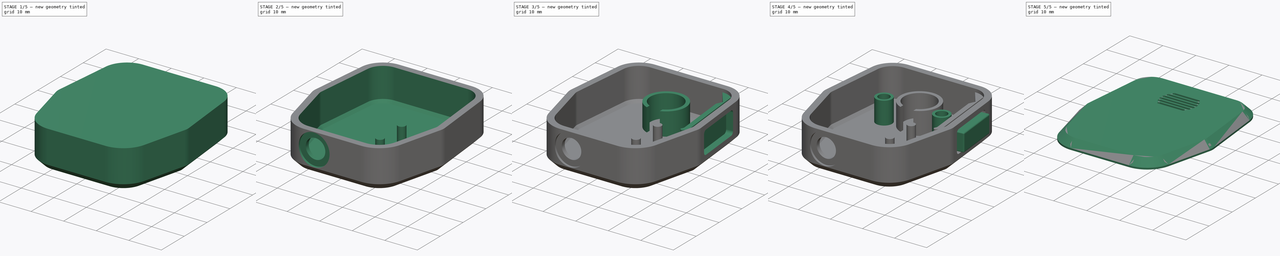
[diagram: build sequence overview — one tinted view per stage of 5, left to right]
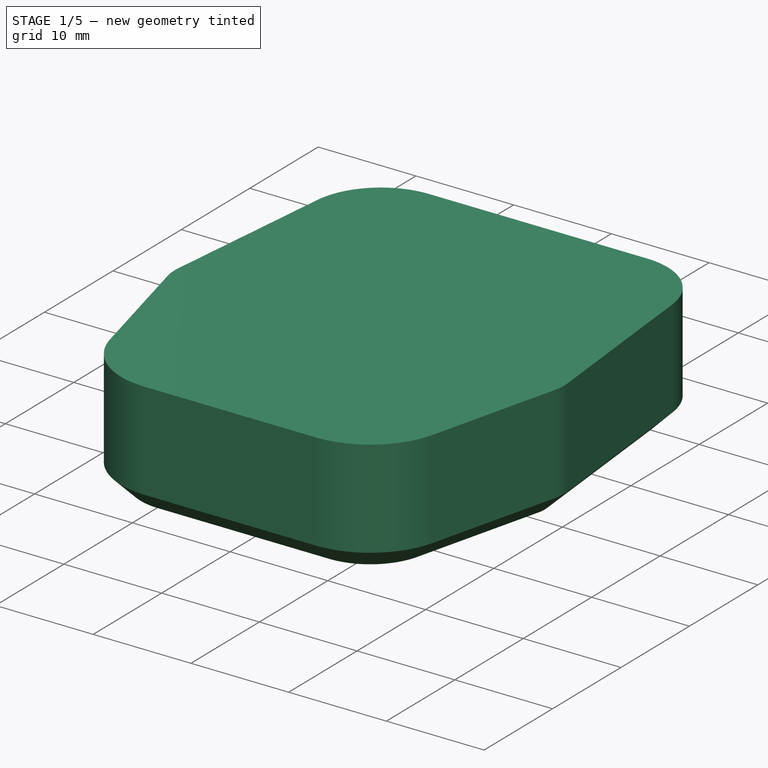
[diagram: stage 1 of 5 — iso view after this stage's code; geometry added in this stage tinted green]
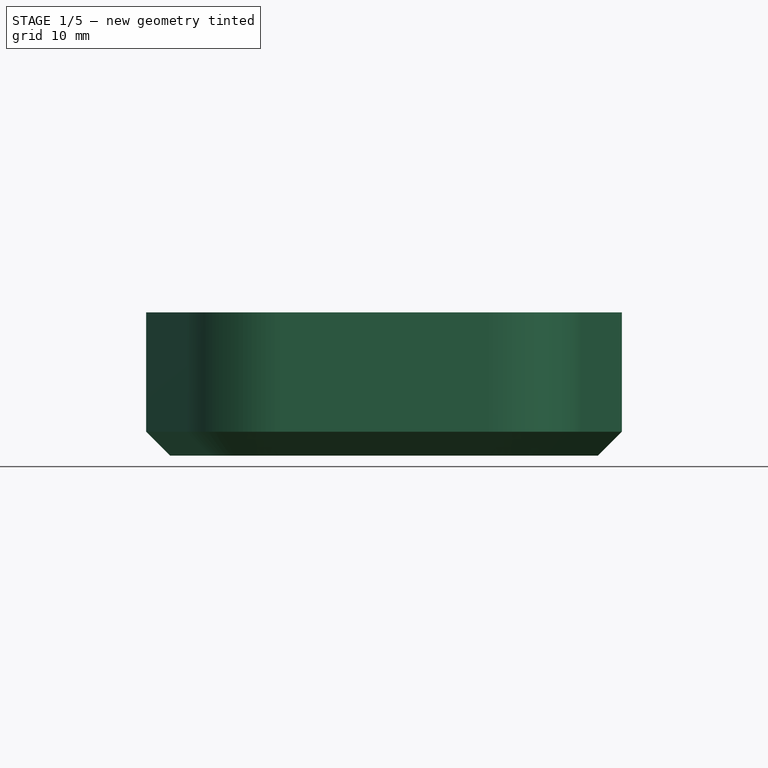
[diagram: stage 1 of 5 — front view after this stage's code; geometry added in this stage tinted green]
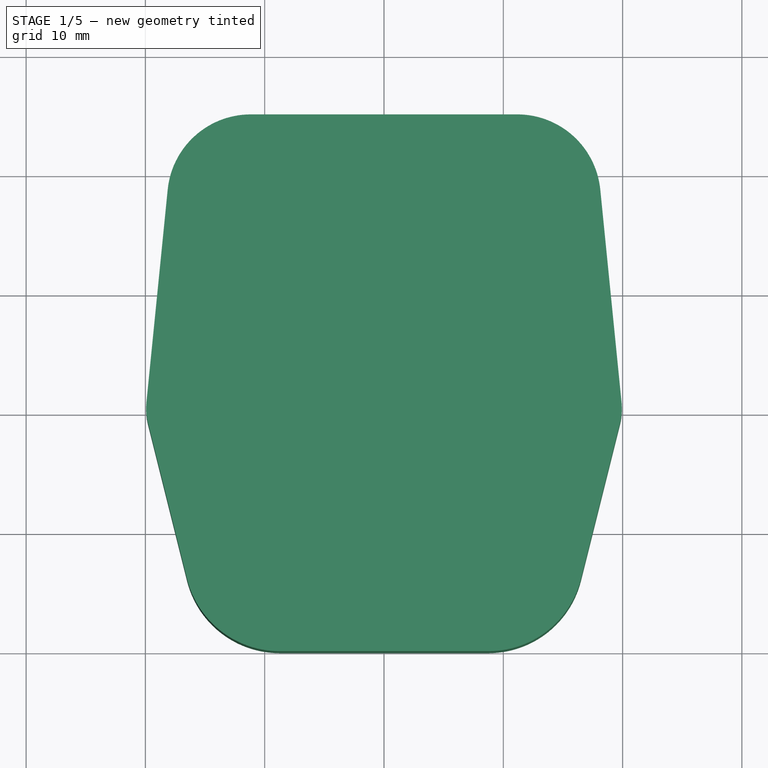
[diagram: stage 1 of 5 — top view after this stage's code; geometry added in this stage tinted green]
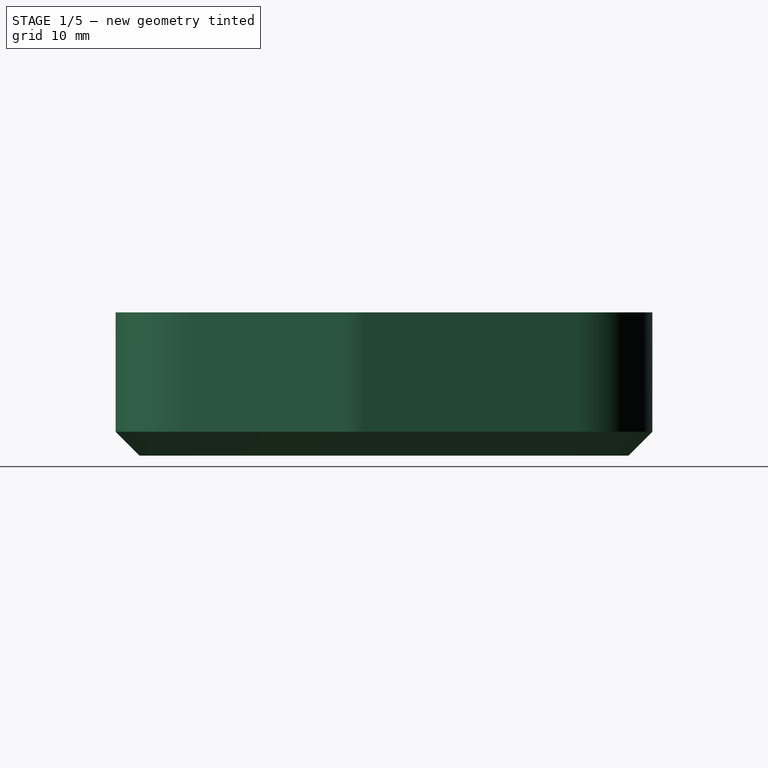
[diagram: stage 1 of 5 — right view after this stage's code; geometry added in this stage tinted green]
FCSTD DOCUMENT  (FreeCAD 1.0R39285 (Git))
Label: QMXMic
License: All rights reserved
objects: Sketcher::SketchObject×17, PartDesign::Pad×9, PartDesign::Pocket×7, PartDesign::Fillet×5, PartDesign::Chamfer×2, PartDesign::Body×2, PartDesign::SubShapeBinder×2, PartDesign::Thickness×1, PartDesign::Hole×1
note: 113 computed .brp shape members not serialized (recipe doc carries the construction recipe); baked Part::Feature solids carry a one-line shape summary decoded from their .brp

FEATURE [Sketcher::SketchObject] Sketch
  ArcFitTolerance = 1e-06
  AttachmentSupport = -> [XY_Plane]
  FullyConstrained = true
  MakeInternals = false
  MapMode = 5
  sketch-geometry (6):
    g0: LineSegment StartX=-20 StartY=0 StartZ=0 EndX=-15 EndY=-20 EndZ=0
    g1: LineSegment StartX=-15 StartY=-20 StartZ=0 EndX=15 EndY=-20 EndZ=0
    g2: LineSegment StartX=15 StartY=-20 StartZ=0 EndX=20 EndY=0 EndZ=0
    g3: LineSegment StartX=-20 StartY=0 StartZ=0 EndX=-17.5 EndY=25 EndZ=0
    g4: LineSegment StartX=-17.5 StartY=25 StartZ=0 EndX=17.5 EndY=25 EndZ=0
    g5: LineSegment StartX=17.5 StartY=25 StartZ=0 EndX=20 EndY=0 EndZ=0
  constraints (15):
    c: Coincident(g1,g0)
    c: Coincident(g2,g1)
    c: Coincident(g3,g0)
    c: Coincident(g4,g3)
    c: Coincident(g5,g4)
    c: Coincident(g5,g2)
    c: Symmetric(g3,g4,g-2)
    c: Symmetric(g0,g1,g-2)
    c: Symmetric(g0,g2,g-2)
    c: DistanceX(g4,g4) = 35
    c: DistanceX(g0,g2) = 40
    c: Distance(g1,g4) = 45
    c: Distance(g0,g4) = 25
    c: PointOnObject(g0,g-1)
    c: DistanceX(g1,g1) = 30
FEATURE [PartDesign::Pad] Pad  label="body"
  Direction = (0,0,1)
  Length = 12
  Length2 = 10
  Profile = -> Sketch
  ReferenceAxis = -> Sketch [N_Axis]
  Refine = true
  Suppressed = false
  Type = 0
FEATURE [PartDesign::Fillet] Fillet  label="upperFillet"
  Base = -> Pad [Edge11,Edge14]
  BaseFeature = -> Pad
  Radius = 7
  Refine = true
  SupportTransform = false
  Suppressed = false
  UseAllEdges = false
FEATURE [PartDesign::Fillet] Fillet001  label="midFillet"
  Base = -> Fillet [Edge3,Edge24]
  BaseFeature = -> Fillet
  Radius = 5
  Refine = true
  SupportTransform = false
  Suppressed = false
  UseAllEdges = false
FEATURE [PartDesign::Fillet] Fillet002  label="lowerFillet"
  Base = -> Fillet001 [Edge27,Edge25]
  BaseFeature = -> Fillet001
  Radius = 8
  Refine = true
  SupportTransform = false
  Suppressed = false
  UseAllEdges = false
FEATURE [PartDesign::Chamfer] Chamfer  label="bottomChamfer"
  Angle = 45
  Base = -> Fillet002 [Face1]
  BaseFeature = -> Fillet002
  ChamferType = 0
  FlipDirection = false
  Refine = true
  Size = 2
  Size2 = 1
  SupportTransform = false
  Suppressed = false
  UseAllEdges = false
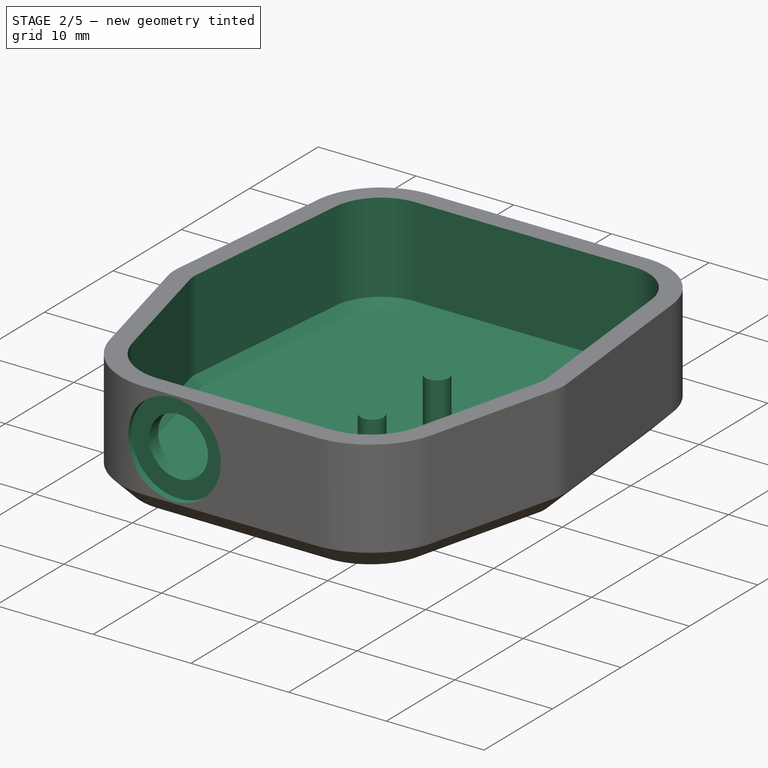
[diagram: stage 2 of 5 — iso view after this stage's code; geometry added in this stage tinted green]
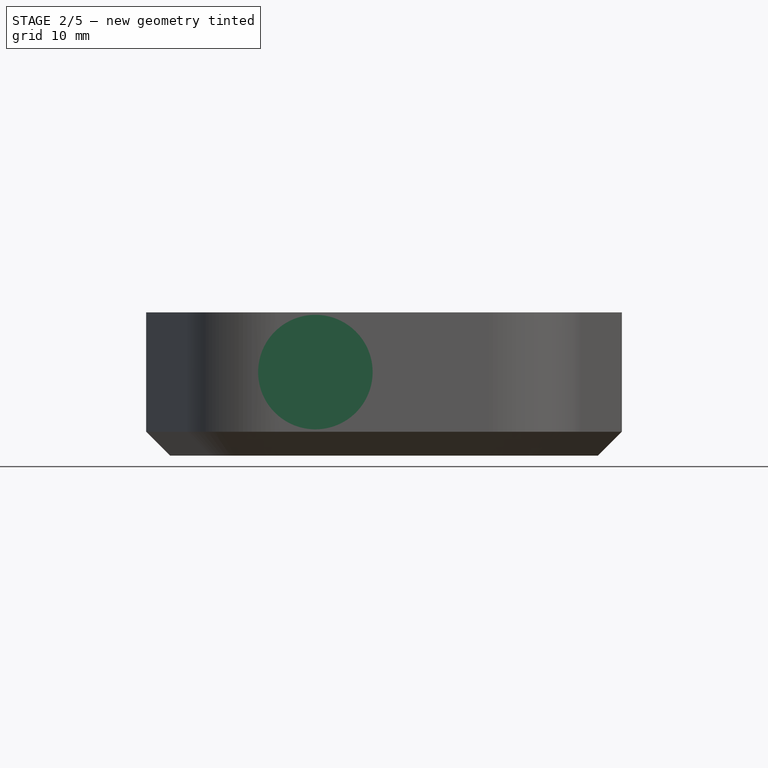
[diagram: stage 2 of 5 — front view after this stage's code; geometry added in this stage tinted green]
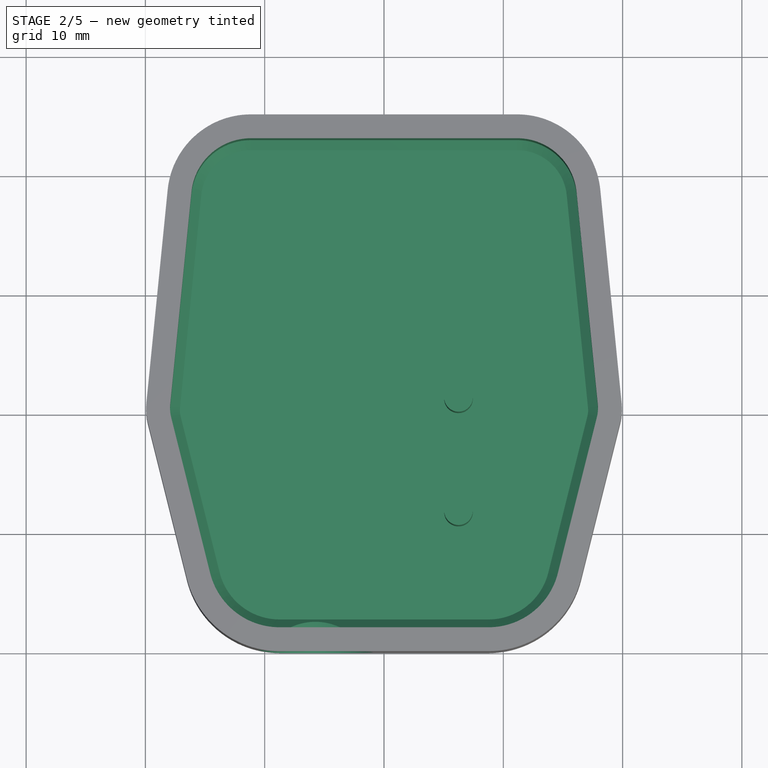
[diagram: stage 2 of 5 — top view after this stage's code; geometry added in this stage tinted green]
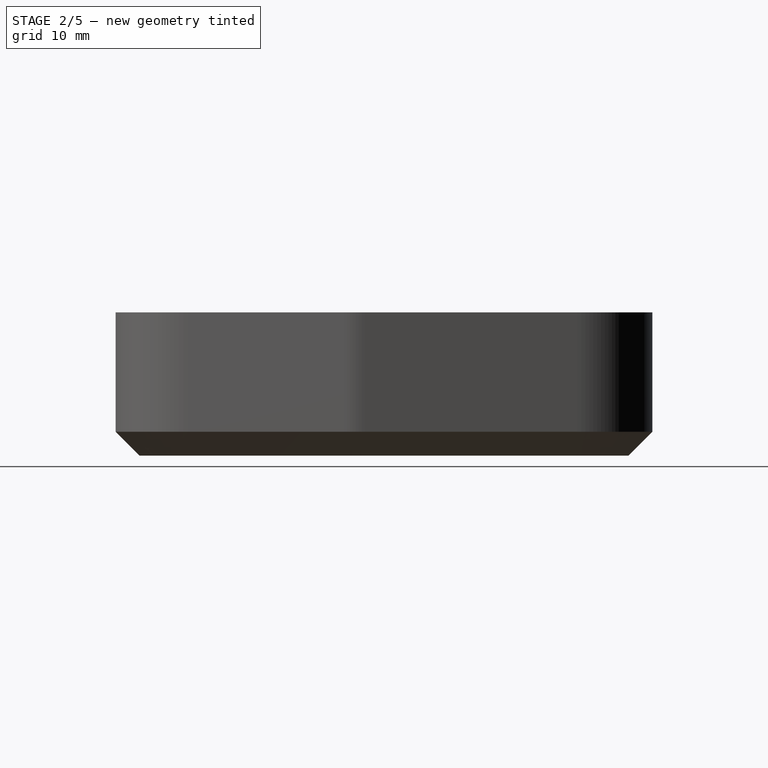
[diagram: stage 2 of 5 — right view after this stage's code; geometry added in this stage tinted green]
FEATURE [PartDesign::Thickness] Thickness  label="shell"
  Base = -> Chamfer [Face26]
  BaseFeature = -> Chamfer
  Intersection = false
  Join = 0
  Mode = 0
  Refine = true
  Reversed = true
  SupportTransform = false
  Suppressed = false
  Value = 2
FEATURE [Sketcher::SketchObject] Sketch001
  ArcFitTolerance = 1e-06
  AttachmentSupport = -> [Thickness]
  ExternalGeometry = -> [Thickness]
  FullyConstrained = true
  MakeInternals = false
  MapMode = 5
  Placement = pos=(0,-20,0) rot=(1,0,0;1.5708rad)
  sketch-geometry (3):
    g0: Circle CenterX=-5.75379 CenterY=7 CenterZ=0 NormalX=0 NormalY=0 NormalZ=1 AngleXU=0 Radius=3
    g1: LineSegment [constr] StartX=-5.75379 StartY=7 StartZ=0 EndX=-5.75379 EndY=12 EndZ=0
    g2: LineSegment [constr] StartX=-5.75379 StartY=7 StartZ=0 EndX=-5.75379 EndY=2 EndZ=0
  constraints (9):
    c: Tangent(g0,g-5)
    c: Diameter(g0) = 6
    c: Coincident(g1,g0)
    c: PointOnObject(g1,g-3)
    c: Vertical(g1)
    c: Coincident(g2,g0)
    c: PointOnObject(g2,g-4)
    c: Vertical(g2)
    c: Equal(g1,g2)
FEATURE [PartDesign::Pocket] Pocket  label="micJackHole"
  BaseFeature = -> Thickness
  Direction = (0,1,-2e-16)
  Length = 5
  Length2 = 5
  Profile = -> Sketch001
  ReferenceAxis = -> Sketch001 [N_Axis]
  Refine = true
  Suppressed = false
  Type = 2
FEATURE [Sketcher::SketchObject] Sketch002
  ArcFitTolerance = 1e-06
  AttachmentSupport = -> [Pocket]
  ExternalGeometry = -> [Pocket]
  FullyConstrained = true
  MakeInternals = false
  MapMode = 5
  Placement = pos=(0,-18,0) rot=(0,0.707107,0.707107;3.14159rad)
  sketch-geometry (1):
    g0: Circle CenterX=5.75379 CenterY=7 CenterZ=0 NormalX=0 NormalY=0 NormalZ=1 AngleXU=0 Radius=4.8
  constraints (2):
    c: Coincident(g0,g-4)
    c: Diameter(g0) = 9.6
FEATURE [PartDesign::Pocket] Pocket001  label="micJackClearanceInside"
  BaseFeature = -> Pocket
  Direction = (0,-1,2e-16)
  Length = 5
  Length2 = 5
  Profile = -> Sketch002
  ReferenceAxis = -> Sketch002 [N_Axis]
  Refine = true
  Reversed = true
  Suppressed = false
  Type = 0
FEATURE [Sketcher::SketchObject] Sketch003
  ArcFitTolerance = 1e-06
  AttachmentSupport = -> [Pocket001]
  ExternalGeometry = -> [Pocket001]
  FullyConstrained = true
  MakeInternals = false
  MapMode = 5
  Placement = pos=(0,-20,0) rot=(1,0,0;1.5708rad)
  sketch-geometry (1):
    g0: Circle CenterX=-5.75379 CenterY=7 CenterZ=0 NormalX=0 NormalY=0 NormalZ=1 AngleXU=0 Radius=4.8
  constraints (2):
    c: Coincident(g0,g-4)
    c: Diameter(g0) = 9.6
FEATURE [PartDesign::Pocket] Pocket002  label="micJackClearanceOutside"
  BaseFeature = -> Pocket001
  Direction = (0,1,-2e-16)
  Length = 0.7
  Length2 = 5
  Profile = -> Sketch003
  ReferenceAxis = -> Sketch003 [N_Axis]
  Refine = true
  Suppressed = false
  Type = 0
FEATURE [Sketcher::SketchObject] Sketch004
  ArcFitTolerance = 1e-06
  AttachmentSupport = -> [Pocket002]
  ExternalGeometry = -> [Pocket002]
  FullyConstrained = true
  MakeInternals = false
  MapMode = 5
  Placement = pos=(0,0,2) rot=(0,0,1;0rad)
  sketch-geometry (4):
    g0: Circle CenterX=6.24621 CenterY=1.32843 CenterZ=0 NormalX=0 NormalY=0 NormalZ=1 AngleXU=0 Radius=1.2
    g1: Circle CenterX=6.24621 CenterY=-8.17157 CenterZ=0 NormalX=0 NormalY=0 NormalZ=1 AngleXU=0 Radius=1.2
    g2: LineSegment [constr] StartX=6.24621 StartY=1.32843 StartZ=0 EndX=6.24621 EndY=-8.17157 EndZ=0
    g3: LineSegment [constr] StartX=-5.75379 StartY=-22.1716 StartZ=0 EndX=-5.75379 EndY=0 EndZ=0
  constraints (11):
    c: Coincident(g2,g0)
    c: Coincident(g2,g1)
    c: Vertical(g2)
    c: Equal(g0,g1)
    c: Diameter(g0) = 2.4
    c: DistanceY(g2,g2) = 9.5
    c: Coincident(g3,g-3)
    c: PointOnObject(g3,g-1)
    c: Vertical(g3)
    c: Distance(g2,g3) = 12
    c: Distance(g1,g-4) = 9
FEATURE [PartDesign::Pad] Pad001  label="buttonPosts"
  BaseFeature = -> Pocket002
  Direction = (0,0,1)
  Length = 7
  Length2 = 10
  Profile = -> Sketch004
  ReferenceAxis = -> Sketch004 [N_Axis]
  Refine = true
  Suppressed = false
  Type = 0
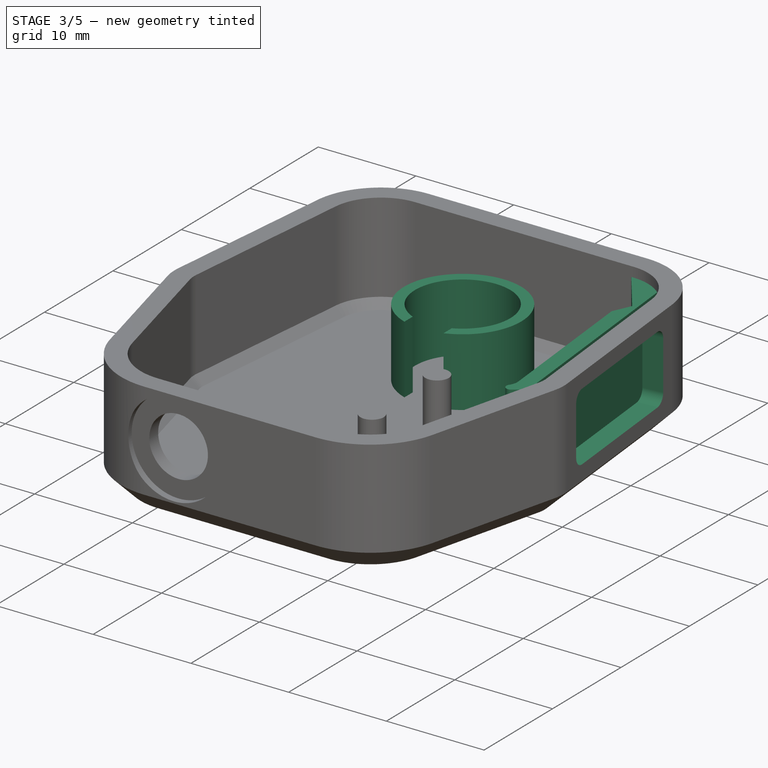
[diagram: stage 3 of 5 — iso view after this stage's code; geometry added in this stage tinted green]
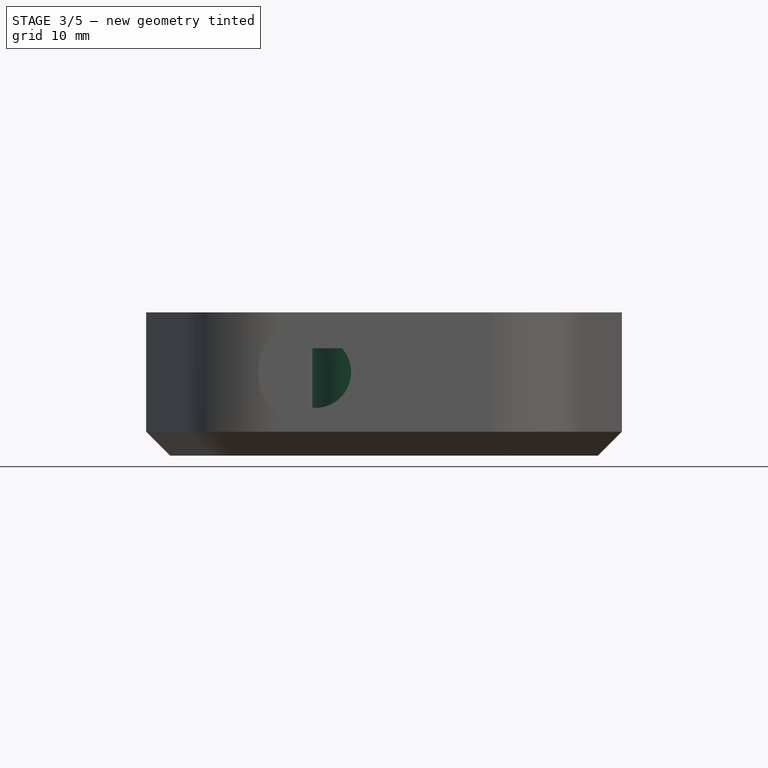
[diagram: stage 3 of 5 — front view after this stage's code; geometry added in this stage tinted green]
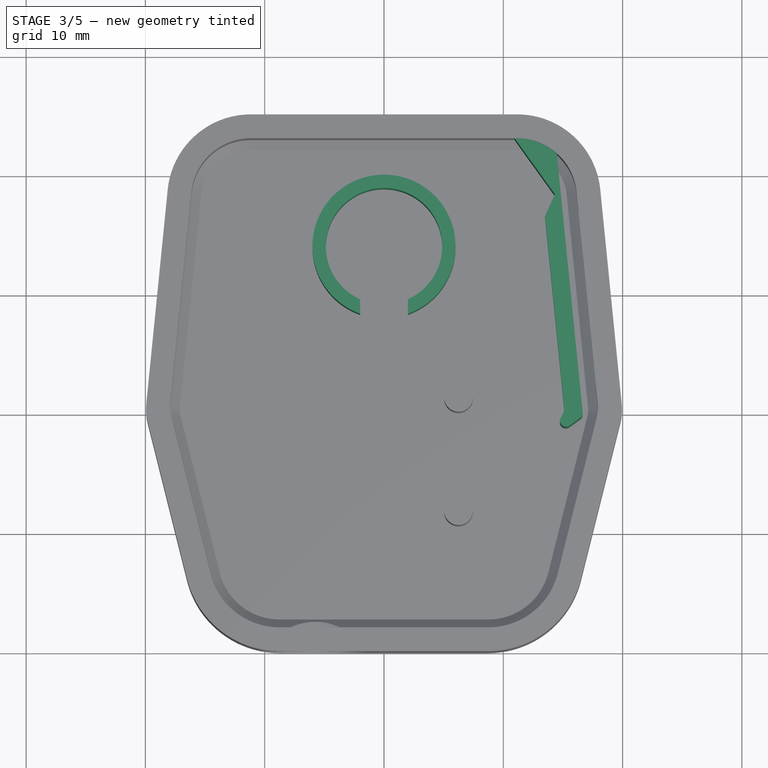
[diagram: stage 3 of 5 — top view after this stage's code; geometry added in this stage tinted green]
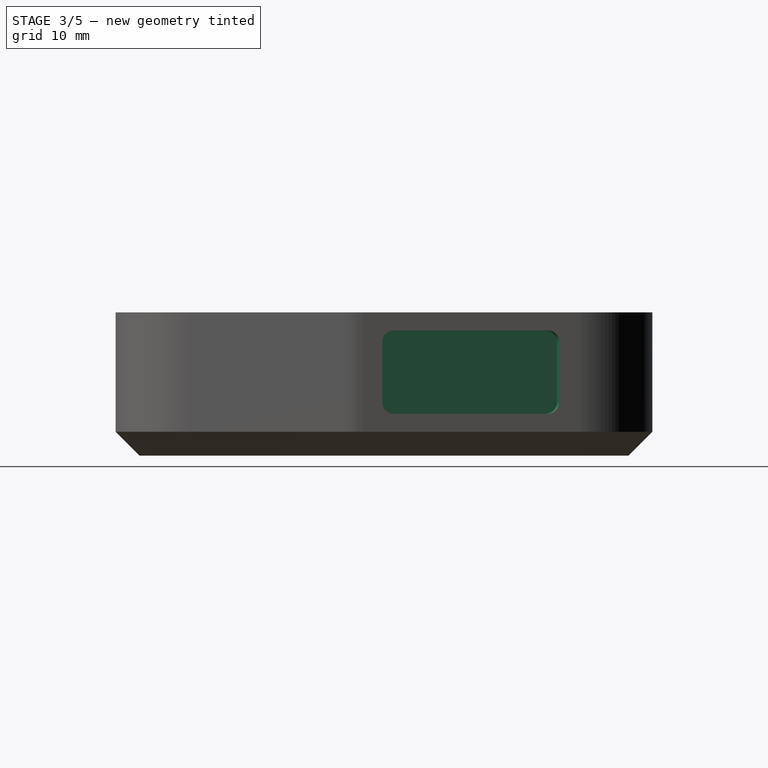
[diagram: stage 3 of 5 — right view after this stage's code; geometry added in this stage tinted green]
FEATURE [Sketcher::SketchObject] Sketch005
  ArcFitTolerance = 1e-06
  AttachmentSupport = -> [Pad001]
  FullyConstrained = true
  MakeInternals = false
  MapMode = 5
  Placement = pos=(0,0,2) rot=(0,0,1;0rad)
  sketch-geometry (1):
    g0: Circle CenterX=0 CenterY=14 CenterZ=0 NormalX=0 NormalY=0 NormalZ=1 AngleXU=0 Radius=6
  constraints (3):
    c: PointOnObject(g0,g-2)
    c: Diameter(g0) = 12
    c: Distance(g0,g-1) = 14
FEATURE [PartDesign::Pad] Pad002  label="micBracket"
  BaseFeature = -> Pad001
  Direction = (0,0,1)
  Length = 7
  Length2 = 10
  Profile = -> Sketch005
  ReferenceAxis = -> Sketch005 [N_Axis]
  Refine = true
  Suppressed = false
  Type = 0
FEATURE [Sketcher::SketchObject] Sketch006
  ArcFitTolerance = 1e-06
  AttachmentSupport = -> [Pad002]
  ExternalGeometry = -> [Pad002]
  FullyConstrained = true
  MakeInternals = false
  MapMode = 5
  Placement = pos=(0,0,9) rot=(0,0,1;0rad)
  sketch-geometry (4):
    g0: ArcOfCircle CenterX=0 CenterY=14 CenterZ=0 NormalX=0 NormalY=0 NormalZ=1 AngleXU=0 Radius=4.875 StartAngle=5.13512 EndAngle=10.5728
    g1: LineSegment StartX=-2 StartY=9.55415 StartZ=0 EndX=-2 EndY=6.55415 EndZ=0
    g2: LineSegment StartX=-2 StartY=6.55415 StartZ=0 EndX=2 EndY=6.55415 EndZ=0
    g3: LineSegment StartX=2 StartY=6.55415 StartZ=0 EndX=2 EndY=9.55415 EndZ=0
  constraints (11):
    c: Coincident(g0,g-3)
    c: Diameter(g0) = 9.75
    c: Vertical(g1)
    c: Coincident(g2,g1)
    c: Coincident(g3,g2)
    c: Symmetric(g3,g1,g-2)
    c: Symmetric(g2,g1,g-2)
    c: Coincident(g0,g1)
    c: DistanceY(g1,g1) = 3
    c: DistanceX(g2,g2) = 4
    c: PointOnObject(g0,g3)
FEATURE [PartDesign::Pocket] Pocket003  label="micBracketInside"
  BaseFeature = -> Pad002
  Direction = (0,0,-1)
  Length = 0
  Length2 = 5
  Profile = -> Sketch006
  ReferenceAxis = -> Sketch006 [N_Axis]
  Refine = true
  Suppressed = false
  Type = 3
  UpToFace = -> Pad002 [Face56]
FEATURE [Sketcher::SketchObject] Sketch007
  ArcFitTolerance = 1e-06
  AttachmentSupport = -> [Pocket003]
  ExternalGeometry = -> [Pocket003]
  FullyConstrained = true
  MakeInternals = false
  MapMode = 5
  Placement = pos=(19.802,1.9802,0) rot=(0.539008,0.595597,0.595597;2.15286rad)
  sketch-geometry (4):
    g0: LineSegment StartX=15.2997 StartY=10.5 StartZ=0 EndX=0.380175 EndY=10.5 EndZ=0
    g1: LineSegment StartX=0.380175 StartY=10.5 StartZ=0 EndX=0.380175 EndY=3.5 EndZ=0
    g2: LineSegment StartX=0.380175 StartY=3.5 StartZ=0 EndX=15.2997 EndY=3.5 EndZ=0
    g3: LineSegment StartX=15.2997 StartY=3.5 StartZ=0 EndX=15.2997 EndY=10.5 EndZ=0
  constraints (12):
    c: Coincident(g0,g1)
    c: Coincident(g1,g2)
    c: Coincident(g2,g3)
    c: Coincident(g3,g0)
    c: Horizontal(g0)
    c: Horizontal(g2)
    c: Vertical(g1)
    c: Vertical(g3)
    c: Distance(g-4,g0) = 1.5
    c: Distance(g-5,g2) = 1.5
    c: Distance(g-3,g1) = 1.5
    c: Distance(g-6,g3) = 1.5
FEATURE [PartDesign::Pocket] Pocket004  label="pttHole"
  BaseFeature = -> Pocket003
  Direction = (-0.995037,-0.0995037,-1e-16)
  Length = 5
  Length2 = 5
  Profile = -> Sketch007
  ReferenceAxis = -> Sketch007 [N_Axis]
  Refine = true
  Suppressed = false
  Type = 2
FEATURE [PartDesign::Fillet] Fillet003  label="pttHoleFillet"
  Base = -> Pocket004 [Edge83,Edge86,Edge85,Edge88]
  BaseFeature = -> Pocket004
  Radius = 1
  Refine = true
  SupportTransform = false
  Suppressed = false
  UseAllEdges = false
FEATURE [Sketcher::SketchObject] Sketch008
  ArcFitTolerance = 1e-06
  AttachmentSupport = -> [Fillet003]
  ExternalGeometry = -> [Fillet003]
  FullyConstrained = true
  MakeInternals = false
  MapMode = 5
  Placement = pos=(0,0,2) rot=(0,0,1;0rad)
  sketch-geometry (13):
    g0: LineSegment StartX=14.4807 StartY=21.7425 StartZ=0 EndX=16.6519 EndY=0.031 EndZ=0
    g1: LineSegment StartX=14.3209 StartY=18.3156 StartZ=0 EndX=13.4982 EndY=16.4926 EndZ=0
    g2: LineSegment StartX=13.4982 StartY=16.4926 StartZ=0 EndX=15.087 EndY=0.605306 EndZ=0
    g3: ArcOfCircle CenterX=15.2462 CenterY=-0.671573 CenterZ=0 NormalX=0 NormalY=0 NormalZ=1 AngleXU=0 Radius=0.5 StartAngle=2.5426 EndAngle=5.33566
    g4: LineSegment [constr] StartX=6.24621 StartY=1.32843 StartZ=0 EndX=6.24621 EndY=-8.17157 EndZ=0
    g5: LineSegment StartX=16.4462 StartY=-0.42474 StartZ=0 EndX=15.5381 EndY=-1.07756 EndZ=0
    g6: ArcOfCircle CenterX=13.5944 CenterY=0.45605 CenterZ=0 NormalX=0 NormalY=0 NormalZ=1 AngleXU=0 Radius=1.5 StartAngle=5.68419 EndAngle=6.38285
    g7: ArcOfCircle CenterX=16.1544 CenterY=-0.0187518 CenterZ=0 NormalX=0 NormalY=0 NormalZ=1 AngleXU=0 Radius=0.5 StartAngle=5.33566 EndAngle=6.38285
    g8: GeomPoint [constr] X=16.6806 Y=-0.256242 Z=0
    g9: ArcOfCircle CenterX=11.1651 CenterY=18 CenterZ=0 NormalX=0 NormalY=0 NormalZ=1 AngleXU=0 Radius=5 StartAngle=0.845809 EndAngle=1.5708
    g10: LineSegment StartX=10.9535 StartY=23 StartZ=0 EndX=14.3209 EndY=18.3156 EndZ=0
    g11: LineSegment [constr] StartX=11.1651 StartY=23 StartZ=0 EndX=0 EndY=23 EndZ=0
    g12: LineSegment StartX=10.9535 StartY=23 StartZ=0 EndX=11.1651 EndY=23 EndZ=0
  constraints (33):
    c: Coincident(g2,g1)
    c: Parallel(g2,g0)
    c: Distance(g0,g2) = 1.5
    c: Distance(g1,g0) = 0.5
    c: Parallel(g0,g-4)
    c: Distance(g0,g-4) = 0.5
    c: Radius(g3) = 0.5
    c: Coincident(g4,g-6)
    c: Coincident(g4,g-7)
    c: Distance(g3,g4) = 9
    c: DistanceY(g3,g4) = 2
    c: Tangent(g5,g3) = 1.5708
    c: Tangent(g6,g2) = 1.5708
    c: Tangent(g6,g3) = 1.5708
    c: PointOnObject(g8,g0)
    c: PointOnObject(g8,g5)
    c: Tangent(g0,g7) = 1.5708
    c: Tangent(g5,g7) = 1.5708
    c: Radius(g7) = 0.5
    c: Radius(g6) = 1.5
    c: Angle(g0,g5) = 2.0944
    c: Coincident(g9,g0)
    c: Coincident(g-8,g9)
    c: Coincident(g10,g1)
    c: Angle(g10,g1) = 2.0944
    c: Angle(g2,g1) = 2.61799
    c: PointOnObject(g1,g-5)
    c: PointOnObject(g11,g-2)
    c: Tangent(g11,g-8) = -1.5708
    c: Coincident(g9,g11)
    c: Coincident(g12,g10)
    c: Coincident(g12,g9)
    c: Horizontal(g12)
FEATURE [PartDesign::Pad] Pad003  label="pttButtonLever"
  BaseFeature = -> Fillet003
  Direction = (0,0,1)
  Length = 10
  Length2 = 10
  Offset = 1
  Profile = -> Sketch008
  ReferenceAxis = -> Sketch008 [N_Axis]
  Refine = true
  Suppressed = false
  Type = 3
  UpToFace = -> Fillet003 [Face12]
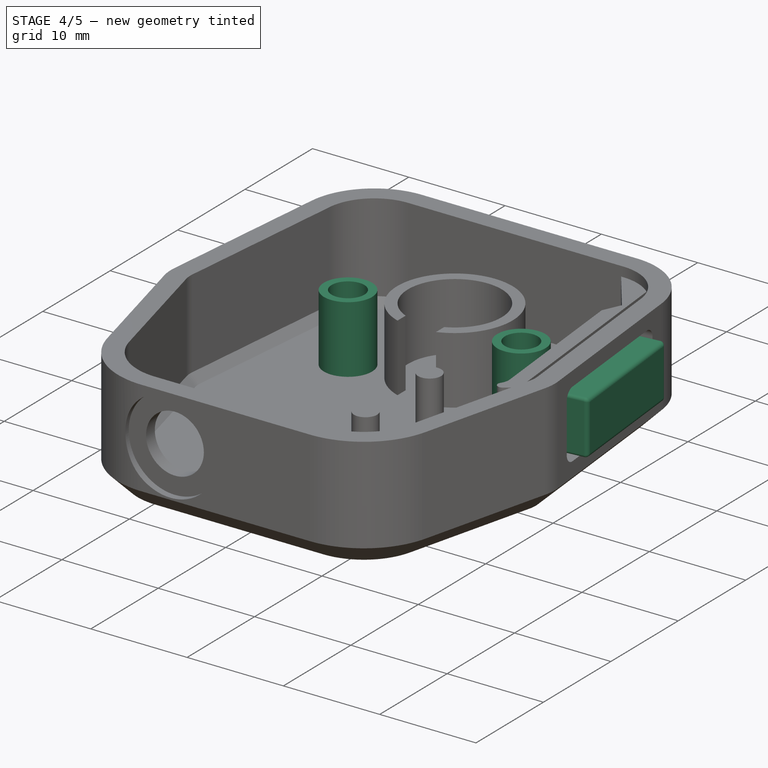
[diagram: stage 4 of 5 — iso view after this stage's code; geometry added in this stage tinted green]
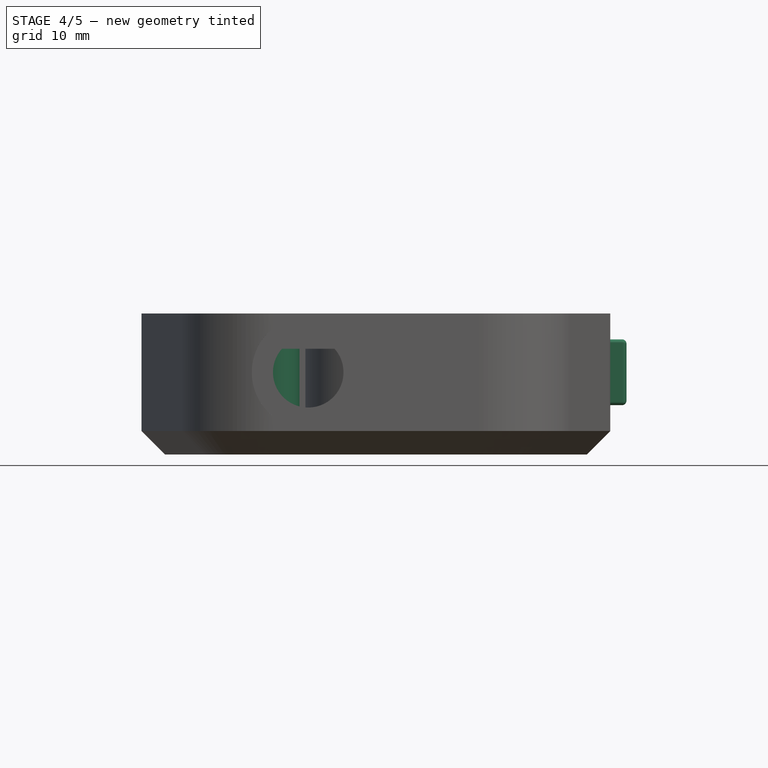
[diagram: stage 4 of 5 — front view after this stage's code; geometry added in this stage tinted green]
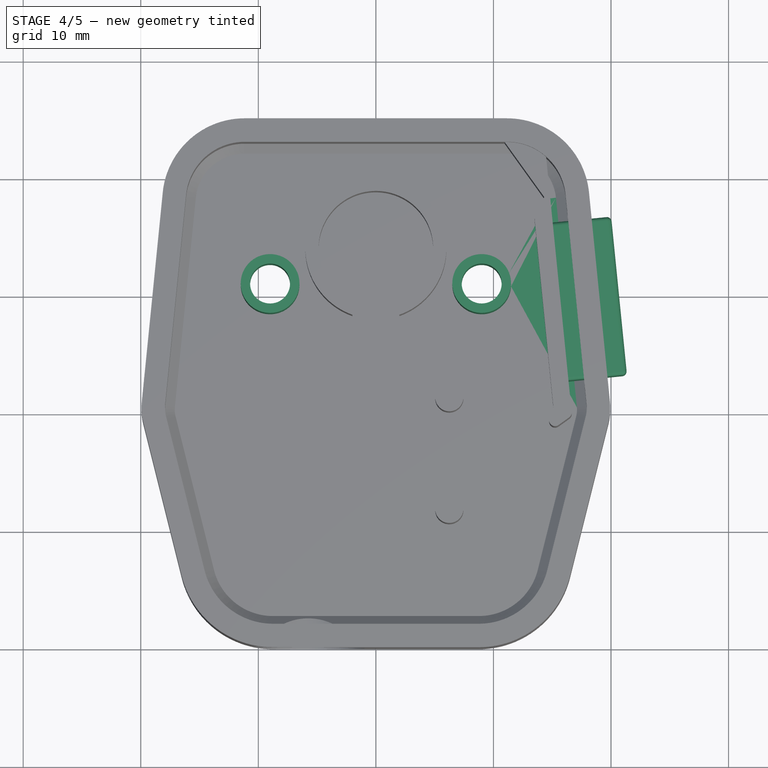
[diagram: stage 4 of 5 — top view after this stage's code; geometry added in this stage tinted green]
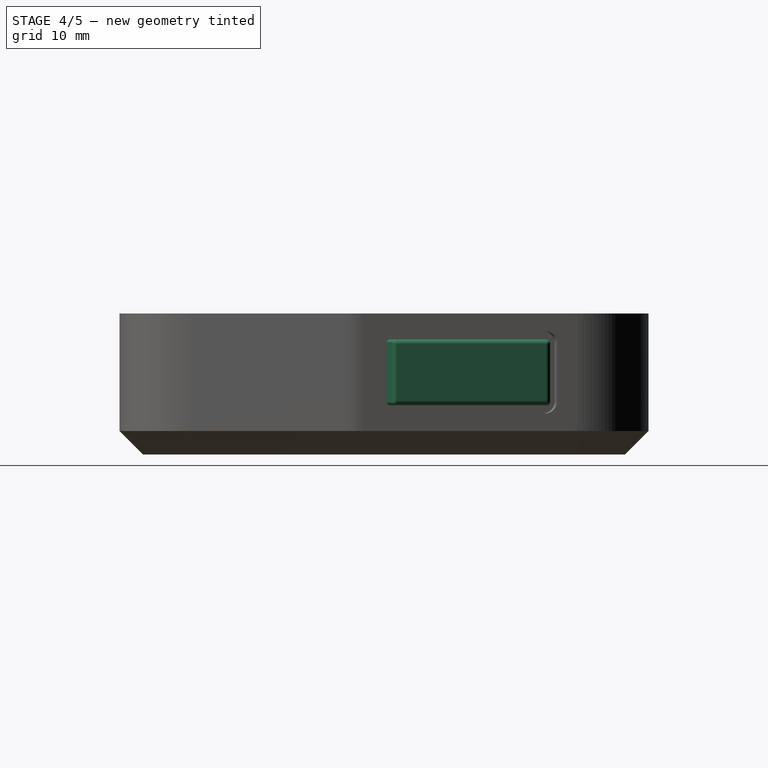
[diagram: stage 4 of 5 — right view after this stage's code; geometry added in this stage tinted green]
FEATURE [Sketcher::SketchObject] Sketch009
  ArcFitTolerance = 1e-06
  AttachmentSupport = -> [Pad003]
  ExternalGeometry = -> [Pad003]
  FullyConstrained = true
  MakeInternals = false
  MapMode = 5
  Placement = pos=(14.9975,1.49975,0) rot=(0.61569,-0.557192,-0.557192;2.03784rad)
  sketch-geometry (4):
    g0: LineSegment StartX=-16.7997 StartY=2 StartZ=0 EndX=2.7003 EndY=2 EndZ=0
    g1: LineSegment StartX=2.7003 StartY=2 StartZ=0 EndX=2.7003 EndY=3 EndZ=0
    g2: LineSegment StartX=2.7003 StartY=3 StartZ=0 EndX=-16.7997 EndY=3 EndZ=0
    g3: LineSegment StartX=-16.7997 StartY=3 StartZ=0 EndX=-16.7997 EndY=2 EndZ=0
  constraints (11):
    c: Coincident(g0,g1)
    c: Coincident(g1,g2)
    c: Coincident(g2,g3)
    c: Coincident(g3,g0)
    c: Horizontal(g0)
    c: Horizontal(g2)
    c: Vertical(g1)
    c: Vertical(g3)
    c: Coincident(g0,g-3)
    c: Distance(g1,g1) = 1
    c: DistanceX(g0,g0) = 19.5
FEATURE [PartDesign::Pocket] Pocket005  label="pttButtonLeverRelief"
  BaseFeature = -> Pad003
  Direction = (0.995037,0.0995037,0)
  Length = 3
  Length2 = 5
  Midplane = true
  Profile = -> Sketch009
  ReferenceAxis = -> Sketch009 [N_Axis]
  Refine = true
  Suppressed = false
  Type = 0
FEATURE [Sketcher::SketchObject] Sketch010
  ArcFitTolerance = 1e-06
  AttachmentSupport = -> [Pocket005]
  ExternalGeometry = -> [Pocket005]
  FullyConstrained = true
  MakeInternals = false
  MapMode = 5
  Placement = pos=(16.4901,1.64901,0) rot=(0.539008,0.595597,0.595597;2.15286rad)
  sketch-geometry (8):
    g0: ArcOfCircle CenterX=1.38018 CenterY=9.5 CenterZ=0 NormalX=0 NormalY=0 NormalZ=1 AngleXU=0 Radius=0.3 StartAngle=1.5708 EndAngle=3.14159
    g1: ArcOfCircle CenterX=1.38018 CenterY=4.5 CenterZ=0 NormalX=0 NormalY=0 NormalZ=1 AngleXU=0 Radius=0.3 StartAngle=3.14159 EndAngle=4.71239
    g2: ArcOfCircle CenterX=14.2997 CenterY=4.5 CenterZ=0 NormalX=0 NormalY=0 NormalZ=1 AngleXU=0 Radius=0.3 StartAngle=4.7124 EndAngle=6.28319
    g3: ArcOfCircle CenterX=14.2997 CenterY=9.5 CenterZ=0 NormalX=0 NormalY=0 NormalZ=1 AngleXU=0 Radius=0.3 StartAngle=0 EndAngle=1.57081
    g4: LineSegment StartX=1.38018 StartY=9.8 StartZ=0 EndX=14.2997 EndY=9.8 EndZ=0
    g5: LineSegment StartX=14.5997 StartY=9.5 StartZ=0 EndX=14.5997 EndY=4.5 EndZ=0
    g6: LineSegment StartX=14.2997 StartY=4.2 StartZ=0 EndX=1.38018 EndY=4.2 EndZ=0
    g7: LineSegment StartX=1.08018 StartY=4.5 StartZ=0 EndX=1.08018 EndY=9.5 EndZ=0
  constraints (20):
    c: Coincident(g0,g-4)
    c: Coincident(g1,g-6)
    c: Coincident(g2,g-8)
    c: Coincident(g3,g-10)
    c: Equal(g0,g3)
    c: Equal(g3,g2)
    c: Equal(g2,g1)
    c: Coincident(g4,g3)
    c: Horizontal(g4)
    c: Coincident(g5,g2)
    c: Vertical(g5)
    c: Coincident(g6,g2)
    c: Horizontal(g6)
    c: Coincident(g7,g0)
    c: Vertical(g7)
    c: Distance(g7,g-5) = 0.7
    c: Tangent(g5,g3) = 1.5708
    c: Tangent(g6,g1) = 1.5708
    c: Tangent(g4,g0) = 1.5708
    c: Tangent(g7,g1) = 1.5708
FEATURE [PartDesign::Pad] Pad004  label="pttButton"
  BaseFeature = -> Pocket005
  Direction = (0.995037,0.0995037,1e-16)
  Length = 5
  Length2 = 10
  Profile = -> Sketch010
  ReferenceAxis = -> Sketch010 [N_Axis]
  Refine = true
  Suppressed = false
  Type = 0
FEATURE [PartDesign::Fillet] Fillet004  label="pttButtonFillet"
  Base = -> Pad004 [Face91]
  BaseFeature = -> Pad004
  Radius = 0.4
  Refine = true
  SupportTransform = false
  Suppressed = false
  UseAllEdges = false
FEATURE [Sketcher::SketchObject] Sketch011
  ArcFitTolerance = 1e-06
  AttachmentSupport = -> [Fillet004]
  FullyConstrained = true
  MakeInternals = false
  MapMode = 5
  Placement = pos=(0,0,2) rot=(0,0,1;0rad)
  sketch-geometry (2):
    g0: Circle CenterX=-9 CenterY=11 CenterZ=0 NormalX=0 NormalY=0 NormalZ=1 AngleXU=0 Radius=2.5
    g1: Circle CenterX=9 CenterY=11 CenterZ=0 NormalX=0 NormalY=0 NormalZ=1 AngleXU=0 Radius=2.5
  constraints (5):
    c: Equal(g1,g0)
    c: Diameter(g0) = 5
    c: Symmetric(g0,g1,g-2)
    c: DistanceX(g0,g1) = 18
    c: Distance(g0,g-1) = 11
FEATURE [PartDesign::Pad] Pad005  label="screwPosts"
  BaseFeature = -> Fillet004
  Direction = (0,0,1)
  Length = 10
  Length2 = 10
  Offset = 3
  Profile = -> Sketch011
  ReferenceAxis = -> Sketch011 [N_Axis]
  Refine = true
  Suppressed = false
  Type = 3
  UpToFace = -> Fillet004 [Face42]
FEATURE [Sketcher::SketchObject] Sketch012
  ArcFitTolerance = 1e-06
  AttachmentSupport = -> [Pad005]
  ExternalGeometry = -> [Pad005]
  FullyConstrained = true
  MakeInternals = false
  MapMode = 5
  Placement = pos=(0,0,0) rot=(1,0,0;3.14159rad)
  sketch-geometry (2):
    g0: Circle CenterX=-9 CenterY=-11 CenterZ=0 NormalX=0 NormalY=0 NormalZ=1 AngleXU=0 Radius=1.6
    g1: Circle CenterX=9 CenterY=-11 CenterZ=0 NormalX=0 NormalY=0 NormalZ=1 AngleXU=0 Radius=1.6
  constraints (4):
    c: Coincident(g0,g-4)
    c: Coincident(g1,g-3)
    c: Equal(g0,g1)
    c: Diameter(g1) = 3.2
FEATURE [PartDesign::Hole] Hole  label="screwHoles"
  BaseFeature = -> Pad005
  CustomThreadClearance = 0
  Depth = 25
  DepthType = 0
  Diameter = 3.4
  DrillForDepth = false
  DrillPoint = 1
  DrillPointAngle = 118
  HoleCutCountersinkAngle = 90
  HoleCutCustomValues = false
  HoleCutDepth = 0
  HoleCutDiameter = 6.1
  HoleCutType = 2
  ModelThread = false
  Profile = -> Sketch012
  Refine = true
  Suppressed = false
  Tapered = false
  TaperedAngle = 90
  ThreadClass = 0
  ThreadDepth = 25
  ThreadDepthType = 0
  ThreadDirection = 0
  ThreadFit = 0
  ThreadSize = 9
  ThreadType = 1
  Threaded = false
  UseCustomThreadClearance = false
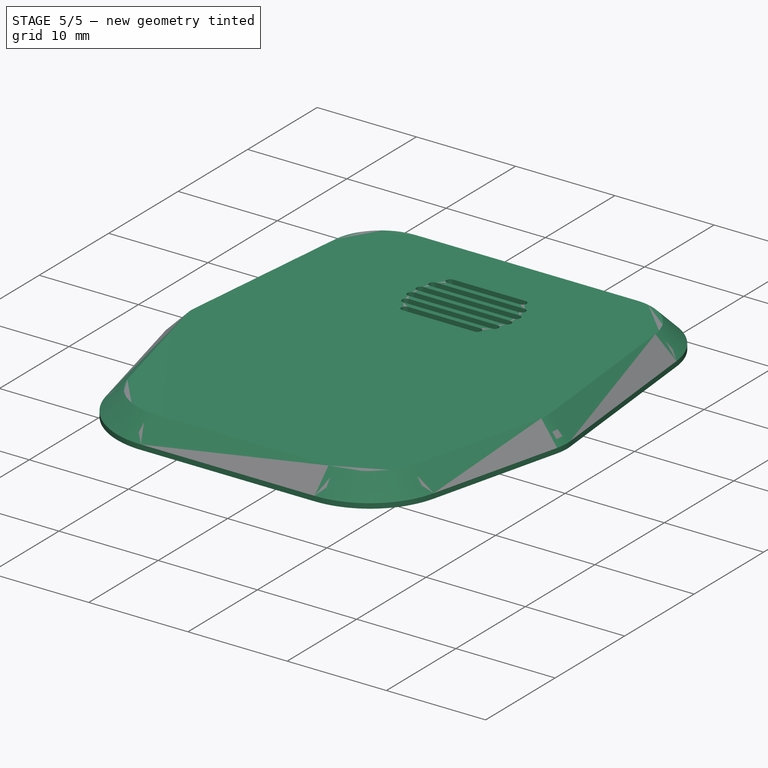
[diagram: stage 5 of 5 — iso view after this stage's code; geometry added in this stage tinted green]
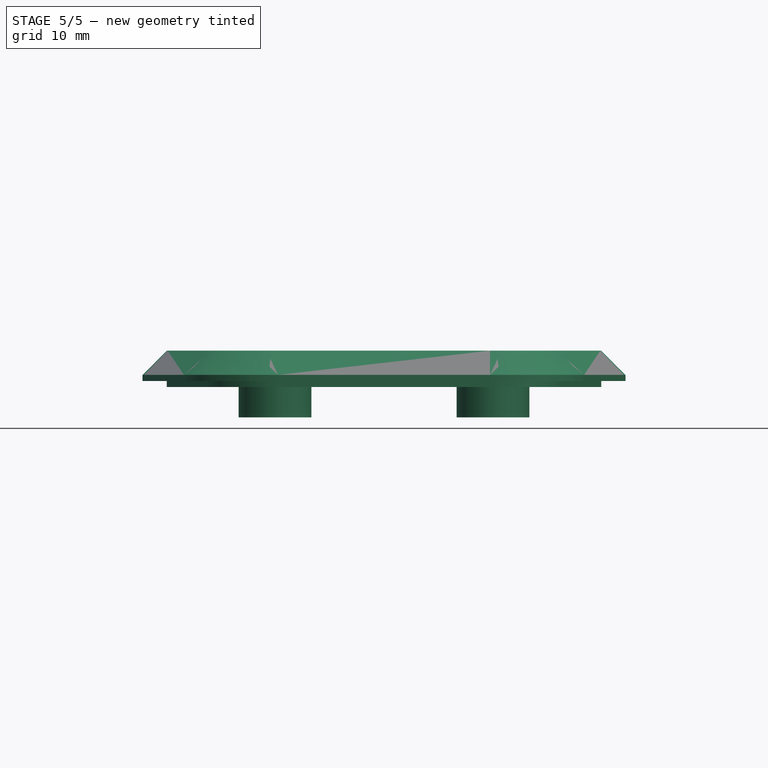
[diagram: stage 5 of 5 — front view after this stage's code; geometry added in this stage tinted green]
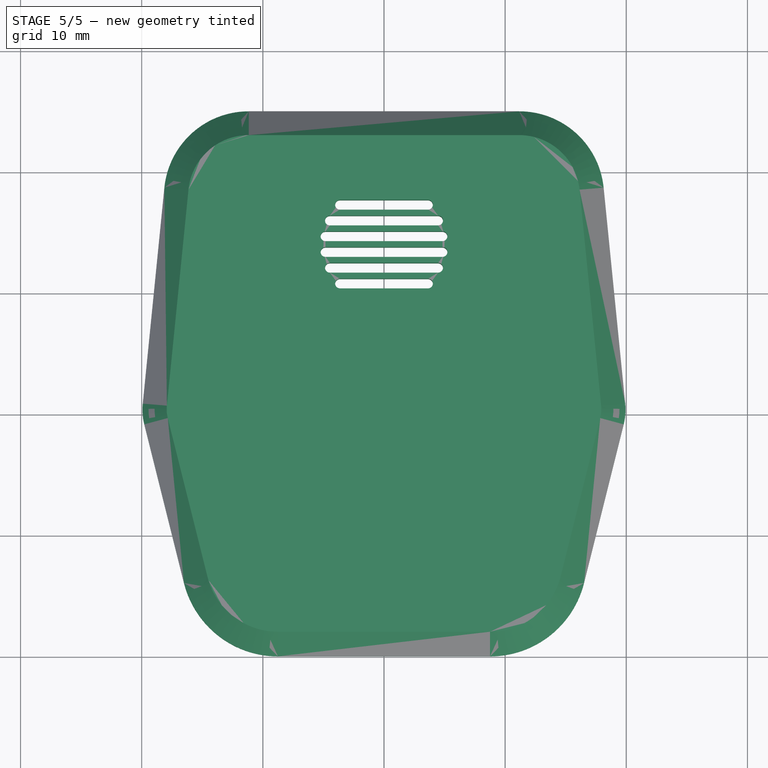
[diagram: stage 5 of 5 — top view after this stage's code; geometry added in this stage tinted green]
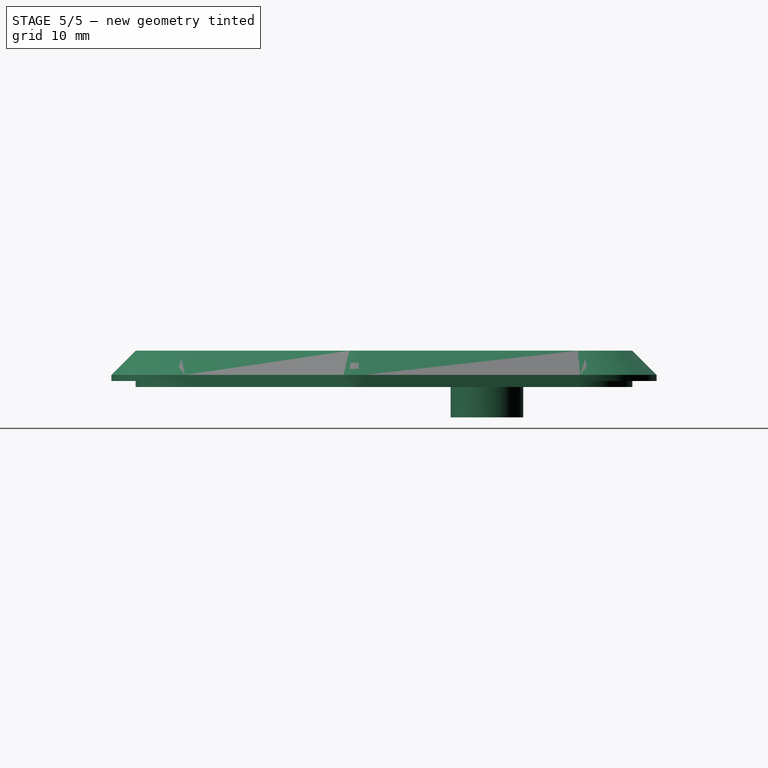
[diagram: stage 5 of 5 — right view after this stage's code; geometry added in this stage tinted green]
FEATURE [PartDesign::Body] Body  label="lower"
  AllowCompound = false
  Group = -> [Sketch,Pad,Fillet,Fillet001,Fillet002,Chamfer,Thickness,Sketch001,Pocket,Sketch002,Pocket001,Sketch003,Pocket002,Sketch004,Pad001,Sketch005,Pad002,Sketch006,Pocket003,Sketch007,Pocket004,Fillet003,Sketch008,Pad003,Sketch009,Pocket005,Sketch010,Pad004,Fillet004,Sketch011,Pad005,Sketch012,Hole]
  Origin = -> Origin
  Tip = -> Hole
FEATURE [PartDesign::SubShapeBinder] Binder
  BindCopyOnChange = 0
  BindMode = 0
  ClaimChildren = false
  Context = -> Body001 [Binder.]
  Fuse = false
  MakeFace = true
  OffsetFill = false
  OffsetIntersection = false
  OffsetJoinType = 0
  OffsetOpenResult = false
  PartialLoad = false
  Refine = true
  Relative = true
  Support = -> [Body[Hole.Face44]]
  _Version = 2
FEATURE [Sketcher::SketchObject] Sketch013
  ArcFitTolerance = 1e-06
  AttachmentSupport = -> [XY_Plane001]
  ExternalGeometry = -> [Binder]
  FullyConstrained = true
  MakeInternals = false
  MapMode = 5
  sketch-geometry (12):
    g0: ArcOfCircle CenterX=-8.75379 CenterY=-12 CenterZ=0 NormalX=0 NormalY=0 NormalZ=1 AngleXU=0 Radius=8 StartAngle=3.38657 EndAngle=4.71239
    g1: ArcOfCircle CenterX=8.75379 CenterY=-12 CenterZ=0 NormalX=0 NormalY=0 NormalZ=1 AngleXU=0 Radius=8 StartAngle=4.71239 EndAngle=6.03821
    g2: ArcOfCircle CenterX=14.9382 CenterY=0.368412 CenterZ=0 NormalX=0 NormalY=0 NormalZ=1 AngleXU=0 Radius=5 StartAngle=6.03821 EndAngle=6.38285
    g3: ArcOfCircle CenterX=11.1651 CenterY=18 CenterZ=0 NormalX=0 NormalY=0 NormalZ=1 AngleXU=0 Radius=7 StartAngle=0.0996687 EndAngle=1.5708
    g4: ArcOfCircle CenterX=-11.1651 CenterY=18 CenterZ=0 NormalX=0 NormalY=0 NormalZ=1 AngleXU=0 Radius=7 StartAngle=1.5708 EndAngle=3.04192
    g5: ArcOfCircle CenterX=-14.9382 CenterY=0.368412 CenterZ=0 NormalX=0 NormalY=0 NormalZ=1 AngleXU=0 Radius=5 StartAngle=3.04192 EndAngle=3.38657
    g6: LineSegment StartX=-18.1303 StartY=18.6965 StartZ=0 EndX=-19.9134 EndY=0.865931 EndZ=0
    g7: LineSegment StartX=-8.75377 StartY=-20 StartZ=0 EndX=8.75379 EndY=-20 EndZ=0
    g8: LineSegment StartX=16.5149 StartY=-13.9403 StartZ=0 EndX=19.7889 EndY=-0.844266 EndZ=0
    g9: LineSegment StartX=19.9134 StartY=0.865931 StartZ=0 EndX=18.1303 EndY=18.6965 EndZ=0
    g10: LineSegment StartX=11.1651 StartY=25 StartZ=0 EndX=-11.1651 EndY=25 EndZ=0
    g11: LineSegment StartX=-19.7889 StartY=-0.844266 StartZ=0 EndX=-16.5149 EndY=-13.9403 EndZ=0
  constraints (26):
    c: Coincident(g4,g-3)
    c: Coincident(g3,g-5)
    c: Coincident(g2,g-7)
    c: Coincident(g5,g-13)
    c: Coincident(g1,g-9)
    c: Coincident(g1,g-9)
    c: Coincident(g2,g-8)
    c: Coincident(g3,g-6)
    c: Coincident(g4,g-4)
    c: Coincident(g5,g-13)
    c: Coincident(g0,g-12)
    c: Coincident(g0,g-11)
    c: Tangent(g6,g4) = -1.5708
    c: Tangent(g6,g5) = -1.5708
    c: Coincident(g7,g0)
    c: Horizontal(g7)
    c: Coincident(g8,g1)
    c: Coincident(g8,g2)
    c: Coincident(g9,g3)
    c: Coincident(g10,g3)
    c: Coincident(g10,g4)
    c: Horizontal(g10)
    c: Tangent(g7,g1) = -1.5708
    c: Tangent(g9,g2) = -1.5708
    c: Coincident(g11,g5)
    c: Coincident(g11,g0)
FEATURE [PartDesign::Pad] Pad006
  Direction = (0,0,1)
  Length = 2.5
  Length2 = 10
  Profile = -> Sketch013
  ReferenceAxis = -> Sketch013 [N_Axis]
  Refine = true
  Suppressed = false
  Type = 0
FEATURE [PartDesign::Chamfer] Chamfer001
  Angle = 45
  Base = -> Pad006 [Face14]
  BaseFeature = -> Pad006
  ChamferType = 0
  FlipDirection = false
  Refine = true
  Size = 2
  Size2 = 1
  SupportTransform = false
  Suppressed = false
  UseAllEdges = false
FEATURE [Sketcher::SketchObject] Sketch014
  ArcFitTolerance = 1e-06
  AttachmentSupport = -> [Chamfer001]
  ExternalGeometry = -> [Binder]
  FullyConstrained = true
  MakeInternals = false
  MapMode = 5
  Placement = pos=(0,0,0) rot=(1,0,0;3.14159rad)
  sketch-geometry (12):
    g0: ArcOfCircle CenterX=-8.75379 CenterY=12 CenterZ=0 NormalX=0 NormalY=0 NormalZ=1 AngleXU=0 Radius=6 StartAngle=1.5708 EndAngle=2.89661
    g1: LineSegment StartX=-14.5746 StartY=13.4552 StartZ=0 EndX=-17.8486 EndY=0.359195 EndZ=0
    g2: ArcOfCircle CenterX=-14.9382 CenterY=-0.368412 CenterZ=0 NormalX=0 NormalY=0 NormalZ=1 AngleXU=0 Radius=3 StartAngle=2.89661 EndAngle=3.24126
    g3: LineSegment StartX=-17.9233 StartY=-0.666923 StartZ=0 EndX=-16.1403 EndY=-18.4975 EndZ=0
    g4: ArcOfCircle CenterX=-11.1651 CenterY=-18 CenterZ=0 NormalX=0 NormalY=0 NormalZ=1 AngleXU=0 Radius=5 StartAngle=3.24126 EndAngle=4.71239
    g5: LineSegment StartX=-11.1651 StartY=-23 StartZ=0 EndX=11.1651 EndY=-23 EndZ=0
    g6: ArcOfCircle CenterX=11.1651 CenterY=-18 CenterZ=0 NormalX=0 NormalY=0 NormalZ=1 AngleXU=0 Radius=5 StartAngle=4.71239 EndAngle=6.18352
    g7: LineSegment StartX=16.1403 StartY=-18.4975 StartZ=0 EndX=17.9233 EndY=-0.666923 EndZ=0
    g8: ArcOfCircle CenterX=14.9382 CenterY=-0.368412 CenterZ=0 NormalX=0 NormalY=0 NormalZ=1 AngleXU=0 Radius=3 StartAngle=6.18352 EndAngle=6.52816
    g9: LineSegment StartX=17.8486 StartY=0.359195 StartZ=0 EndX=14.5746 EndY=13.4552 EndZ=0
    g10: ArcOfCircle CenterX=8.75379 CenterY=12 CenterZ=0 NormalX=0 NormalY=0 NormalZ=1 AngleXU=0 Radius=6 StartAngle=0.244979 EndAngle=1.5708
    g11: LineSegment StartX=8.75379 StartY=18 StartZ=0 EndX=-8.75379 EndY=18 EndZ=0
  constraints (24):
    c: Coincident(g0,g-3)
    c: Coincident(g0,g-4)
    c: Coincident(g1,g-13)
    c: Coincident(g2,g-13)
    c: Coincident(g2,g1)
    c: Coincident(g3,g-11)
    c: Coincident(g4,g-10)
    c: Coincident(g4,g3)
    c: Coincident(g6,g-8)
    c: Coincident(g6,g-8)
    c: Coincident(g7,g6)
    c: Coincident(g7,g-7)
    c: Coincident(g8,g-14)
    c: Coincident(g8,g7)
    c: Coincident(g9,g-6)
    c: Coincident(g10,g-5)
    c: Coincident(g10,g9)
    c: Tangent(g4,g5) = -1.5708
    c: Tangent(g6,g5) = -1.5708
    c: Tangent(g3,g2) = -1.5708
    c: Tangent(g1,g0) = -1.5708
    c: Coincident(g11,g0)
    c: Tangent(g11,g10) = -1.5708
    c: Tangent(g9,g8) = -1.5708
FEATURE [PartDesign::Pad] Pad007
  BaseFeature = -> Chamfer001
  Direction = (0,0,-1)
  Length = 0.5
  Length2 = 10
  Profile = -> Sketch014
  ReferenceAxis = -> Sketch014 [N_Axis]
  Refine = true
  Suppressed = false
  Type = 0
FEATURE [PartDesign::SubShapeBinder] Binder001
  BindCopyOnChange = 0
  BindMode = 0
  ClaimChildren = false
  Context = -> Body001 [Binder001.]
  Fuse = false
  MakeFace = true
  OffsetFill = false
  OffsetIntersection = false
  OffsetJoinType = 0
  OffsetOpenResult = false
  PartialLoad = false
  Refine = true
  Relative = true
  Support = -> [Body[Hole.Face67,Hole.Face68,Hole.Face69]]
  _Version = 2
FEATURE [Sketcher::SketchObject] Sketch015
  ArcFitTolerance = 1e-06
  AttachmentSupport = -> [Pad007]
  ExternalGeometry = -> [Binder001]
  FullyConstrained = true
  MakeInternals = false
  MapMode = 5
  Placement = pos=(0,0,0) rot=(1,0,0;3.14159rad)
  sketch-geometry (4):
    g0: Circle CenterX=-9 CenterY=-11 CenterZ=0 NormalX=0 NormalY=0 NormalZ=1 AngleXU=0 Radius=3
    g1: Circle CenterX=9 CenterY=-11 CenterZ=0 NormalX=0 NormalY=0 NormalZ=1 AngleXU=0 Radius=3
    g2: Circle CenterX=-9 CenterY=-11 CenterZ=0 NormalX=0 NormalY=0 NormalZ=1 AngleXU=0 Radius=1.35
    g3: Circle CenterX=9 CenterY=-11 CenterZ=0 NormalX=0 NormalY=0 NormalZ=1 AngleXU=0 Radius=1.35
  constraints (8):
    c: Coincident(g0,g-3)
    c: Coincident(g1,g-4)
    c: Equal(g0,g1)
    c: Diameter(g0) = 6
    c: Coincident(g2,g0)
    c: Coincident(g3,g1)
    c: Equal(g3,g2)
    c: Diameter(g2) = 2.7
FEATURE [PartDesign::Pad] Pad008
  BaseFeature = -> Pad007
  Direction = (0,0,-1)
  Length = 3
  Length2 = 10
  Profile = -> Sketch015
  ReferenceAxis = -> Sketch015 [N_Axis]
  Refine = true
  Suppressed = false
  Type = 0
FEATURE [Sketcher::SketchObject] Sketch016
  ArcFitTolerance = 1e-06
  AttachmentSupport = -> [Pad008]
  ExternalGeometry = -> [Binder001]
  FullyConstrained = true
  MakeInternals = false
  MapMode = 5
  Placement = pos=(0,0,2.5) rot=(0,0,1;0rad)
  sketch-geometry (24):
    g0: ArcOfCircle CenterX=-4.46801 CenterY=15.95 CenterZ=0 NormalX=0 NormalY=0 NormalZ=1 AngleXU=0 Radius=0.4 StartAngle=1.5708 EndAngle=4.71239
    g1: ArcOfCircle CenterX=4.46801 CenterY=15.95 CenterZ=0 NormalX=0 NormalY=0 NormalZ=1 AngleXU=0 Radius=0.4 StartAngle=4.71239 EndAngle=7.85398
    g2: LineSegment StartX=-4.46801 StartY=16.35 StartZ=0 EndX=4.46801 EndY=16.35 EndZ=0
    g3: LineSegment StartX=-4.46801 StartY=15.55 StartZ=0 EndX=4.46801 EndY=15.55 EndZ=0
    g4: ArcOfCircle CenterX=-4.83147 CenterY=14.65 CenterZ=0 NormalX=0 NormalY=0 NormalZ=1 AngleXU=0 Radius=0.4 StartAngle=1.5708 EndAngle=4.71239
    g5: ArcOfCircle CenterX=4.83147 CenterY=14.65 CenterZ=0 NormalX=0 NormalY=0 NormalZ=1 AngleXU=0 Radius=0.4 StartAngle=4.71239 EndAngle=7.85398
    g6: LineSegment StartX=-4.83147 StartY=15.05 StartZ=0 EndX=4.83147 EndY=15.05 EndZ=0
    g7: LineSegment StartX=-4.83147 StartY=14.25 StartZ=0 EndX=4.83147 EndY=14.25 EndZ=0
    g8: ArcOfCircle CenterX=-4.83147 CenterY=13.35 CenterZ=0 NormalX=0 NormalY=0 NormalZ=1 AngleXU=0 Radius=0.4 StartAngle=1.5708 EndAngle=4.71239
    g9: ArcOfCircle CenterX=4.83147 CenterY=13.35 CenterZ=0 NormalX=0 NormalY=0 NormalZ=1 AngleXU=0 Radius=0.4 StartAngle=4.71239 EndAngle=7.85398
    g10: LineSegment StartX=-4.83147 StartY=13.75 StartZ=0 EndX=4.83147 EndY=13.75 EndZ=0
    g11: LineSegment StartX=-4.83147 StartY=12.95 StartZ=0 EndX=4.83147 EndY=12.95 EndZ=0
    g12: ArcOfCircle CenterX=-4.46801 CenterY=12.05 CenterZ=0 NormalX=0 NormalY=0 NormalZ=1 AngleXU=0 Radius=0.4 StartAngle=1.5708 EndAngle=4.71239
    g13: ArcOfCircle CenterX=4.46801 CenterY=12.05 CenterZ=0 NormalX=0 NormalY=0 NormalZ=1 AngleXU=0 Radius=0.4 StartAngle=4.71239 EndAngle=7.85398
    g14: LineSegment StartX=-4.46801 StartY=12.45 StartZ=0 EndX=4.46801 EndY=12.45 EndZ=0
    g15: LineSegment StartX=-4.46801 StartY=11.65 StartZ=0 EndX=4.46801 EndY=11.65 EndZ=0
    g16: ArcOfCircle CenterX=-3.63361 CenterY=17.25 CenterZ=0 NormalX=0 NormalY=0 NormalZ=1 AngleXU=0 Radius=0.4 StartAngle=1.5708 EndAngle=4.71239
    g17: ArcOfCircle CenterX=3.63361 CenterY=17.25 CenterZ=0 NormalX=0 NormalY=0 NormalZ=1 AngleXU=0 Radius=0.4 StartAngle=4.71239 EndAngle=7.85398
    g18: LineSegment StartX=-3.63361 StartY=17.65 StartZ=0 EndX=3.63361 EndY=17.65 EndZ=0
    g19: LineSegment StartX=-3.63361 StartY=16.85 StartZ=0 EndX=3.63361 EndY=16.85 EndZ=0
    g20: ArcOfCircle CenterX=-3.63361 CenterY=10.75 CenterZ=0 NormalX=0 NormalY=0 NormalZ=1 AngleXU=0 Radius=0.4 StartAngle=1.5708 EndAngle=4.71239
    g21: ArcOfCircle CenterX=3.63361 CenterY=10.75 CenterZ=0 NormalX=0 NormalY=0 NormalZ=1 AngleXU=0 Radius=0.4 StartAngle=4.71239 EndAngle=7.85398
    g22: LineSegment StartX=-3.63361 StartY=11.15 StartZ=0 EndX=3.63361 EndY=11.15 EndZ=0
    g23: LineSegment StartX=-3.63361 StartY=10.35 StartZ=0 EndX=3.63361 EndY=10.35 EndZ=0
  constraints (56):
    c: Tangent(g0,g2) = 1.5708
    c: Tangent(g0,g3) = -1.5708
    c: Tangent(g1,g2) = 1.5708
    c: Tangent(g1,g3) = -1.5708
    c: Equal(g0,g1)
    c: Tangent(g4,g6) = 1.5708
    c: Tangent(g4,g7) = -1.5708
    c: Tangent(g5,g6) = 1.5708
    c: Tangent(g5,g7) = -1.5708
    c: Equal(g4,g5)
    c: Tangent(g8,g10) = 1.5708
    c: Tangent(g8,g11) = -1.5708
    c: Tangent(g9,g10) = 1.5708
    c: Tangent(g9,g11) = -1.5708
    c: Equal(g8,g9)
    c: Tangent(g12,g14) = 1.5708
    c: Tangent(g12,g15) = -1.5708
    c: Tangent(g13,g14) = 1.5708
    c: Tangent(g13,g15) = -1.5708
    c: Equal(g12,g13)
    c: Symmetric(g0,g1,g-2)
    c: Symmetric(g4,g5,g-2)
    c: Symmetric(g9,g8,g-2)
    c: Symmetric(g13,g12,g-2)
    c: PointOnObject(g12,g-4)
    c: PointOnObject(g8,g-4)
    c: PointOnObject(g4,g-4)
    c: PointOnObject(g0,g-4)
    c: Equal(g0,g4)
    c: Equal(g4,g8)
    c: Equal(g8,g12)
    c: Radius(g0) = 0.4
    c: Tangent(g16,g18) = 1.5708
    c: Tangent(g16,g19) = -1.5708
    c: Tangent(g17,g18) = 1.5708
    c: Tangent(g17,g19) = -1.5708
    c: Equal(g16,g17)
    c: PointOnObject(g16,g-4)
    c: PointOnObject(g17,g-4)
    c: Horizontal(g18)
    c: Tangent(g20,g22) = 1.5708
    c: Tangent(g20,g23) = -1.5708
    c: Tangent(g21,g22) = 1.5708
    c: Tangent(g21,g23) = -1.5708
    c: Equal(g20,g21)
    c: PointOnObject(g20,g-4)
    c: PointOnObject(g21,g-4)
    c: Horizontal(g22)
    c: Equal(g20,g12)
    c: Equal(g12,g16)
    c: Distance(g2,g18) = 1.3
    c: Distance(g6,g2) = 1.3
    c: Distance(g10,g6) = 1.3
    c: Distance(g14,g10) = 1.3
    c: Distance(g14,g22) = 1.3
    c: Equal(g22,g18)
FEATURE [PartDesign::Pocket] Pocket006
  BaseFeature = -> Pad008
  Direction = (0,0,-1)
  Length = 5
  Length2 = 5
  Profile = -> Sketch016
  ReferenceAxis = -> Sketch016 [N_Axis]
  Refine = true
  Suppressed = false
  Type = 0
FEATURE [PartDesign::Body] Body001  label="upper"
  AllowCompound = false
  Group = -> [Binder,Sketch013,Pad006,Chamfer001,Sketch014,Pad007,Binder001,Sketch015,Pad008,Sketch016,Pocket006]
  Origin = -> Origin001
  Tip = -> Pocket006
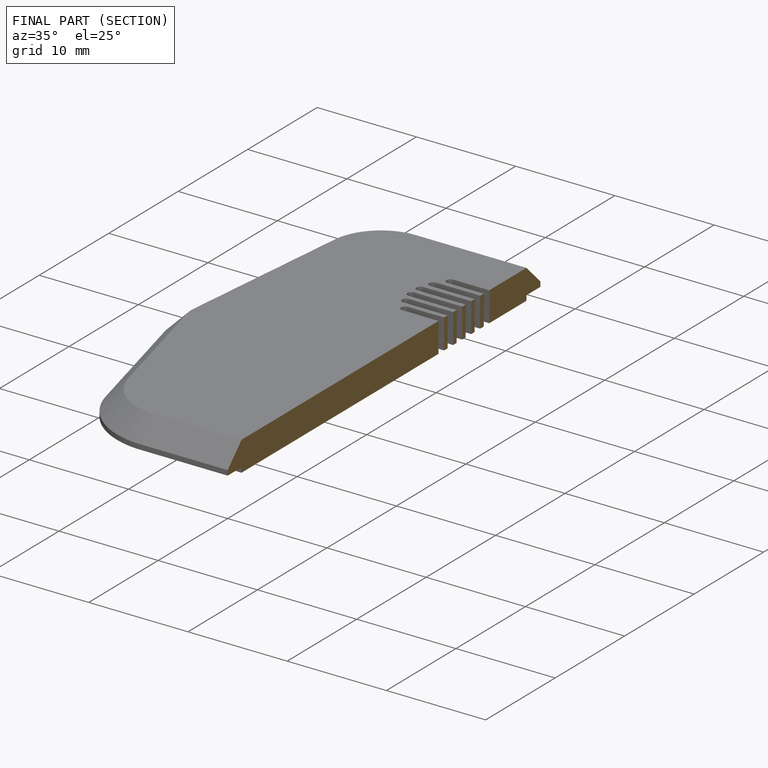
[diagram: finished part — half-section view (interior)]
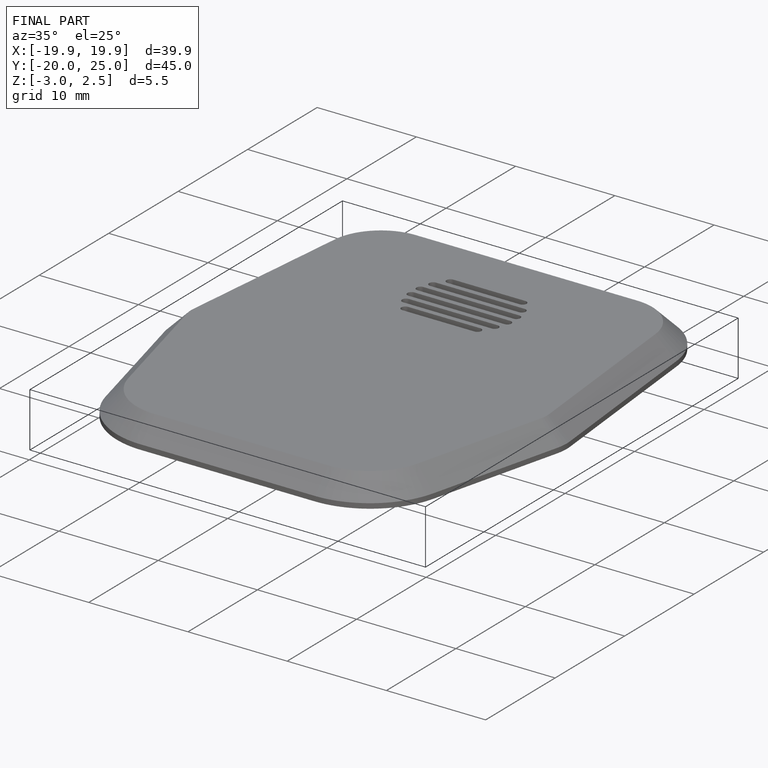
[diagram: finished part — iso view with bounding-box wireframe]
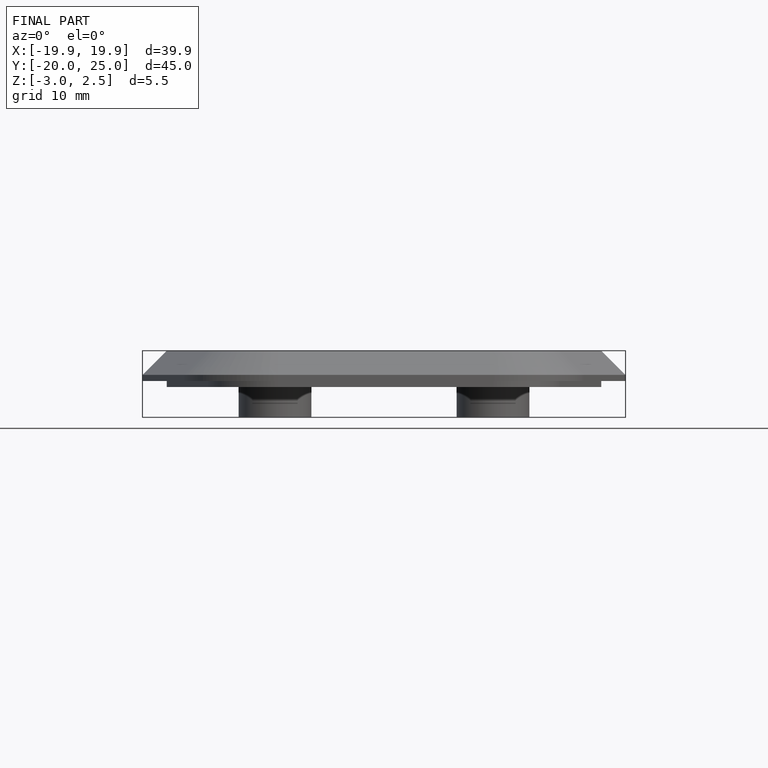
[diagram: finished part — front view with bounding-box wireframe]
